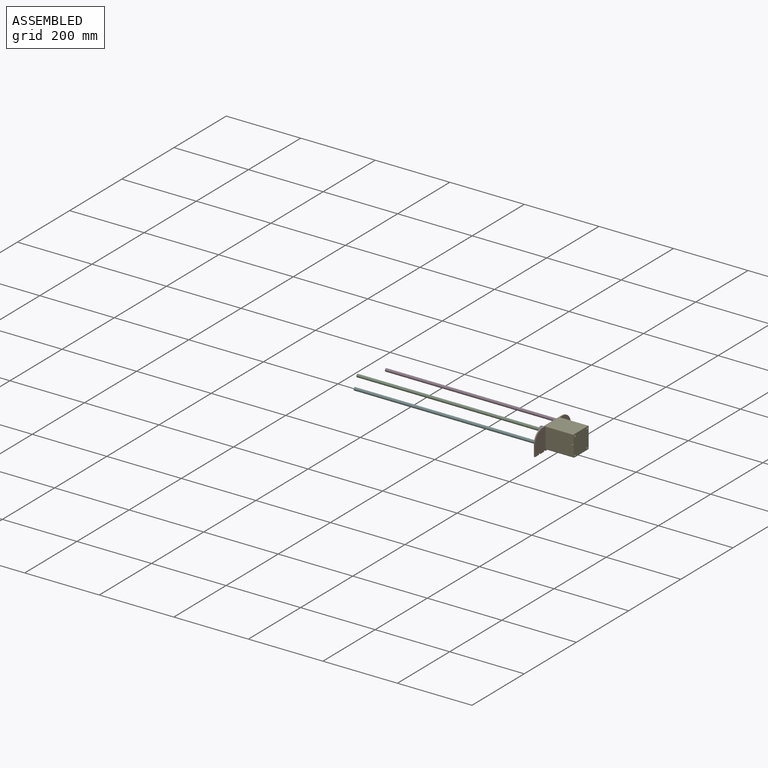
[diagram: assembled view]
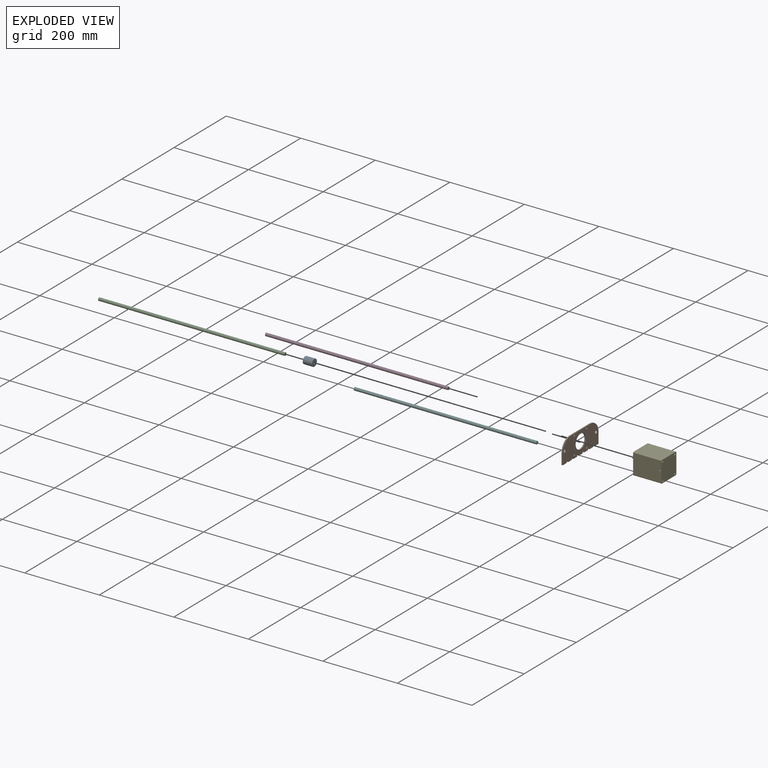
[diagram: exploded view]
GUIDED TOUR — MATED ASSEMBLY (Onshape document c9da2cffbf831127af3cdae4, AutoMate assembly c9da2cffbf831127af3cdae4_b8b92e131061159349de2e6b_43a5a8d6aeeb7ea24047fdc9_default)

This assembly has 6 components, labeled P0..P5 below (a component is one placed occurrence of a part; the same part can appear more than once), held together by 5 mates. A mate is a constraint between two components; its type names the relative motion it leaves free:
  FASTENED — locks the two components together rigidly (no relative motion).
Axis/direction vectors are unit vectors and 'through' points are millimeter coordinates, both in the assembly's world frame.

MATES
  1. FASTENED "Fastened 4": P3 <-> P1, direction (1.000, 0.000, 0.000) through (-14.99, 48.41, -1.45) mm
  2. FASTENED "Fastened 5": P5 <-> P1, direction (1.000, 0.000, 0.000) through (-14.99, -71.59, -1.45) mm
  3. FASTENED "Fastened 1": P4 <-> P1, direction (-1.000, 0.000, 0.000) through (-14.99, -11.59, -1.45) mm
  4. FASTENED "Fastened 2": P0 <-> P4, direction (-1.000, 0.000, 0.000) through (-35.99, -11.59, -1.45) mm
  5. FASTENED "Fastened 3": P2 <-> P0, direction (1.000, 0.000, 0.000) through (-39.49, -11.59, -1.45) mm

ASSEMBLY ORDER
  1. P5 — the base component [order verified]
  2. P2 [order verified]
  3. P3 [order verified]
  4. P0 [order verified]
  5. P1 [order verified]
  6. P4 [order verified]
Order-tag legend:
  [order verified] — this step's position reverses a verified removal order: the component was checked to insert without passing through the ones already placed.

Of the 6 components, 1 carries the full construction recipe — the FeatureScript program that regenerates the part's solid from scratch; the rest are supplied as boundary geometry only.
Each toured component is shown spotlighted twice — in the assembled view, then in the exploded view, where a leader line traces a displaced component back to its assembled socket (saturated green if recipe-attached, orange if geometry-only; every other component desaturated gray) — followed by its recipe or geometry summary and the mates that hold it.
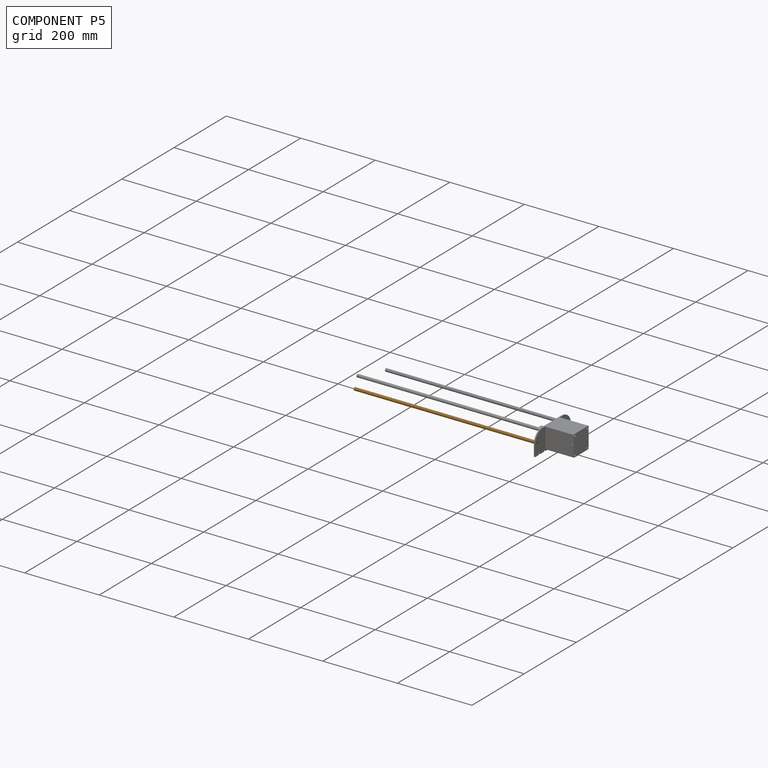
[diagram: component P5 — assembled]
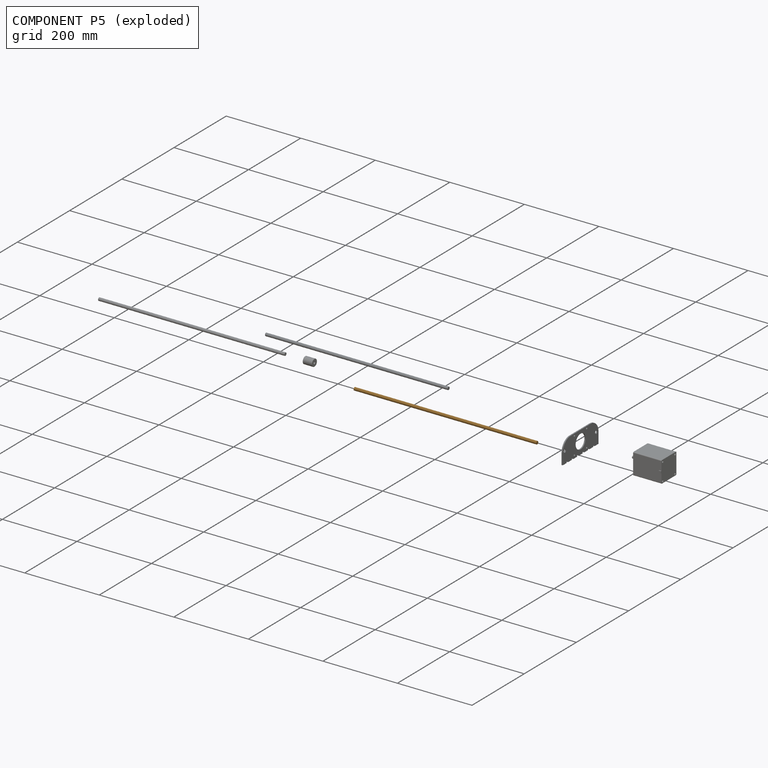
[diagram: component P5 — exploded]
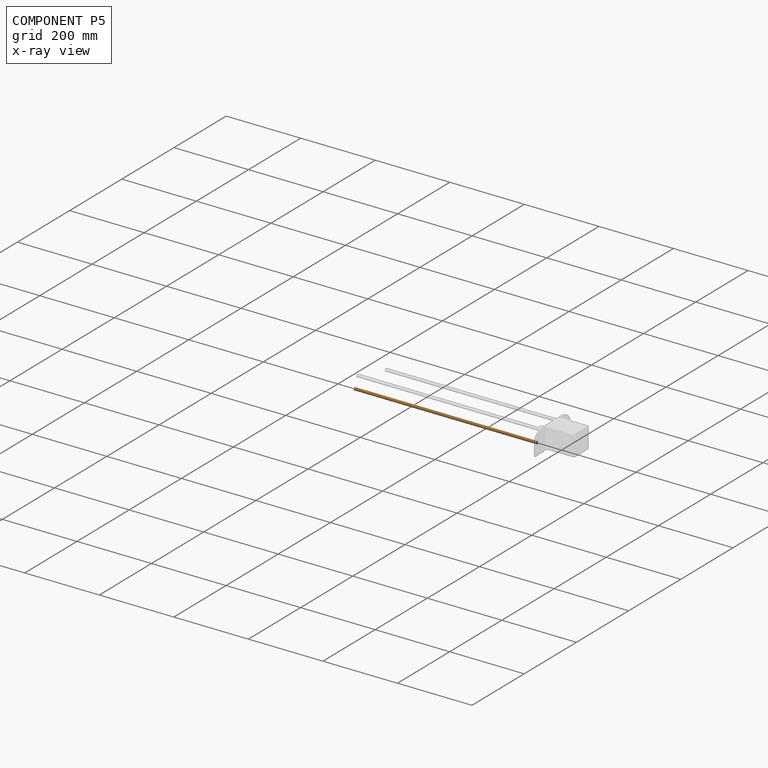
[diagram: component P5 — x-ray view]
COMPONENT P5 — geometry summary (no construction recipe available for this part):
  bounding box: 490.0 x 8.0 x 8.0 mm
  B-rep topology: 1 solid, 3 faces, 6 edges
  volume: 24630 mm^3 (79% of its bounding box)
  symmetry: 2-fold rotationally symmetric about the x axis; 2-fold rotationally symmetric about the y axis; revolution-symmetric about the z axis through its bounding-box center; mirror-symmetric across its x mid-plane, y mid-plane, z mid-plane
Held by: FASTENED mate "Fastened 5" to P1.
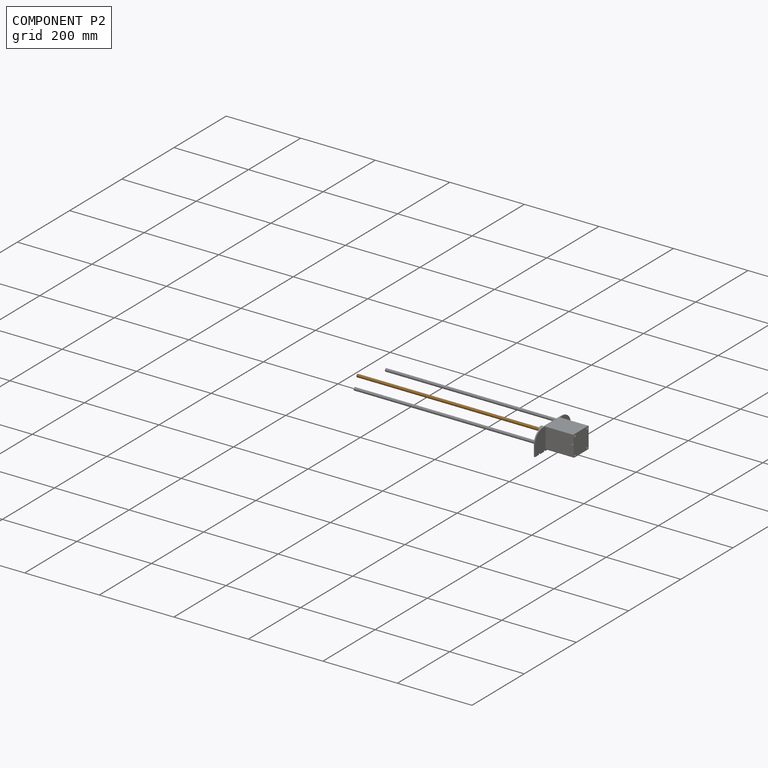
[diagram: component P2 — assembled]
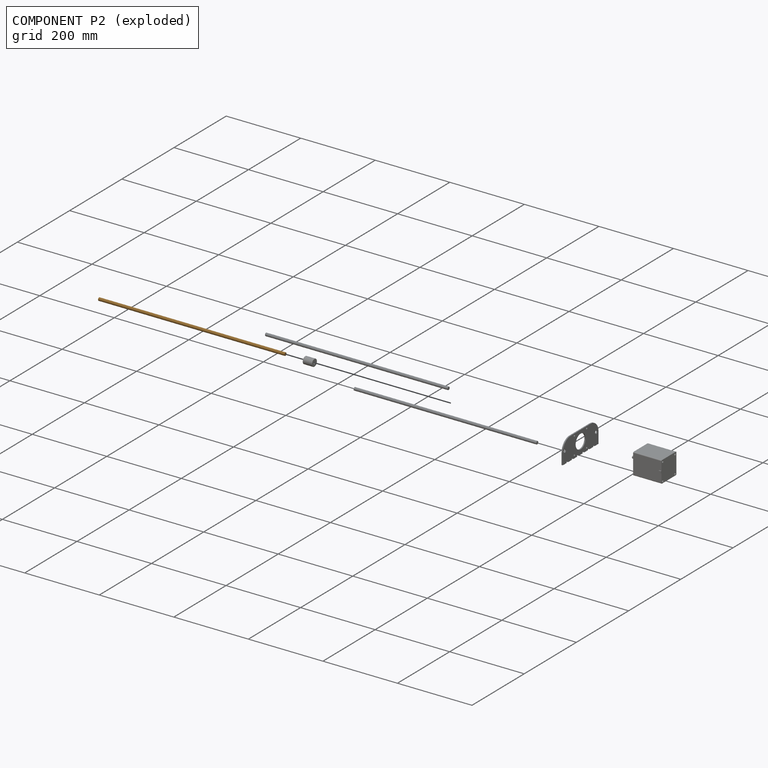
[diagram: component P2 — exploded]
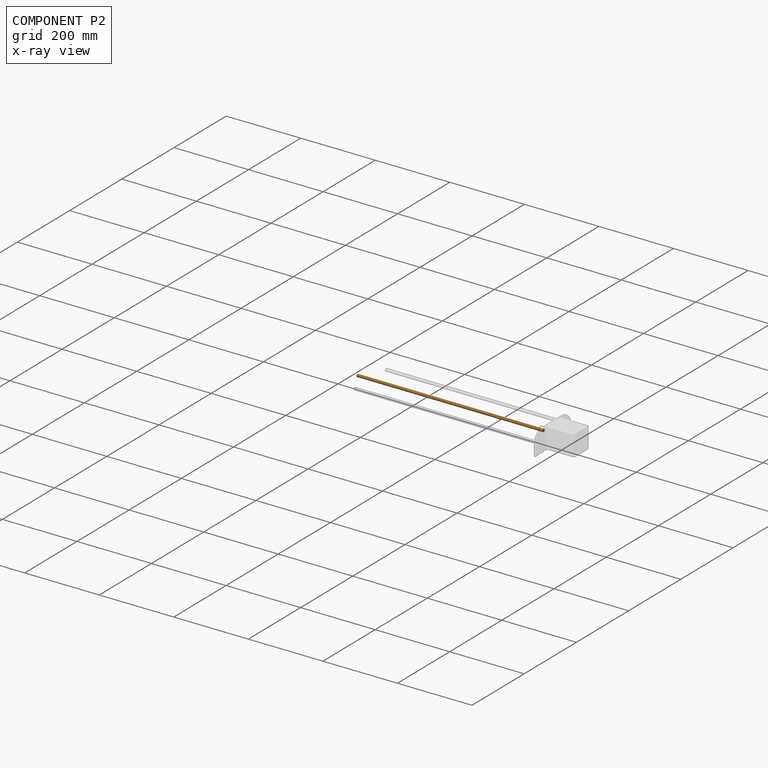
[diagram: component P2 — x-ray view]
COMPONENT P2 — geometry summary (no construction recipe available for this part):
  bounding box: 500.0 x 8.0 x 8.0 mm
  B-rep topology: 1 solid, 3 faces, 6 edges
  volume: 25133 mm^3 (79% of its bounding box)
  symmetry: 2-fold rotationally symmetric about the x axis; 2-fold rotationally symmetric about the y axis; revolution-symmetric about the z axis through its bounding-box center; mirror-symmetric across its x mid-plane, y mid-plane, z mid-plane
Held by: FASTENED mate "Fastened 3" to P0.
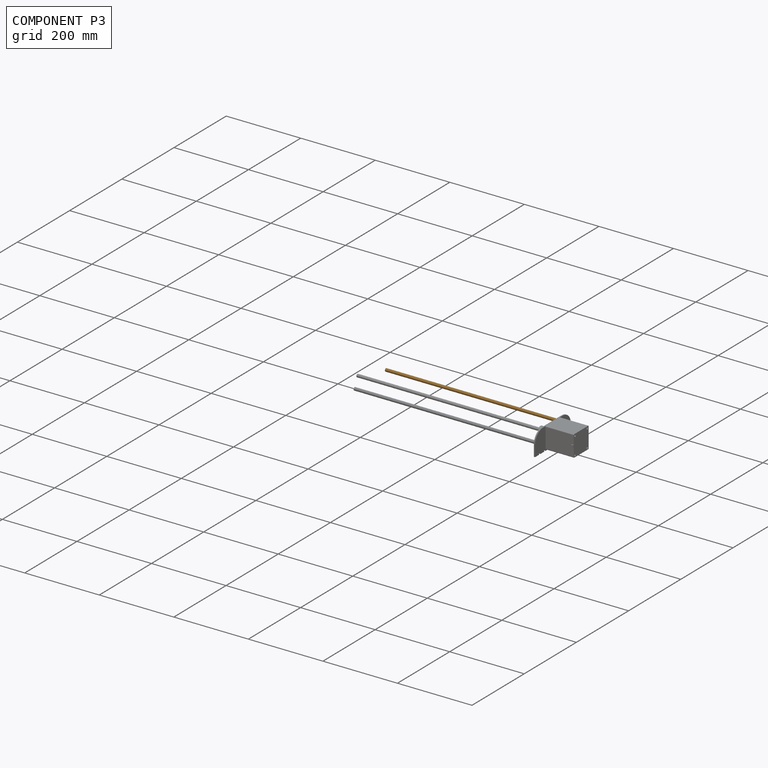
[diagram: component P3 — assembled]
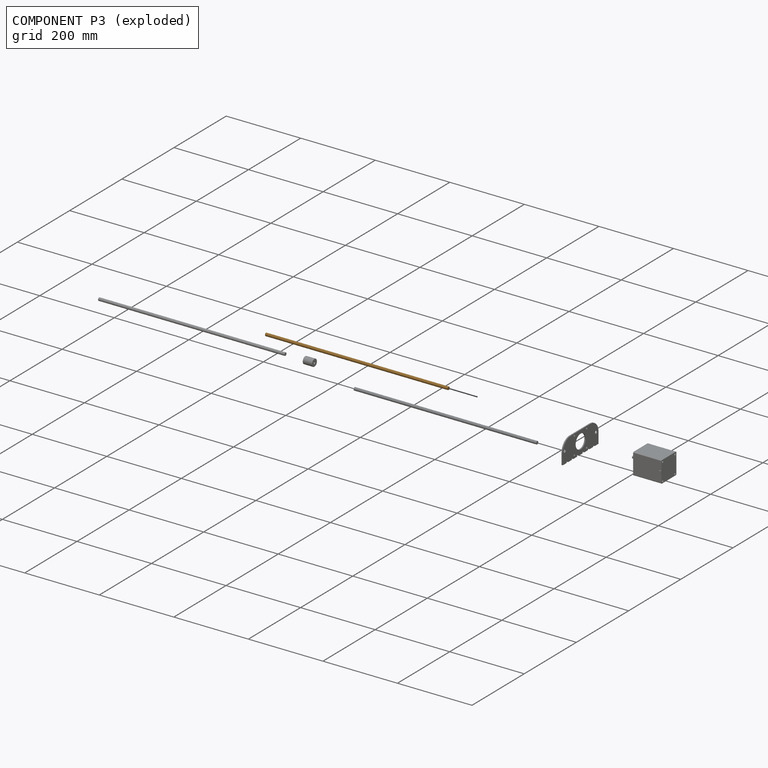
[diagram: component P3 — exploded]
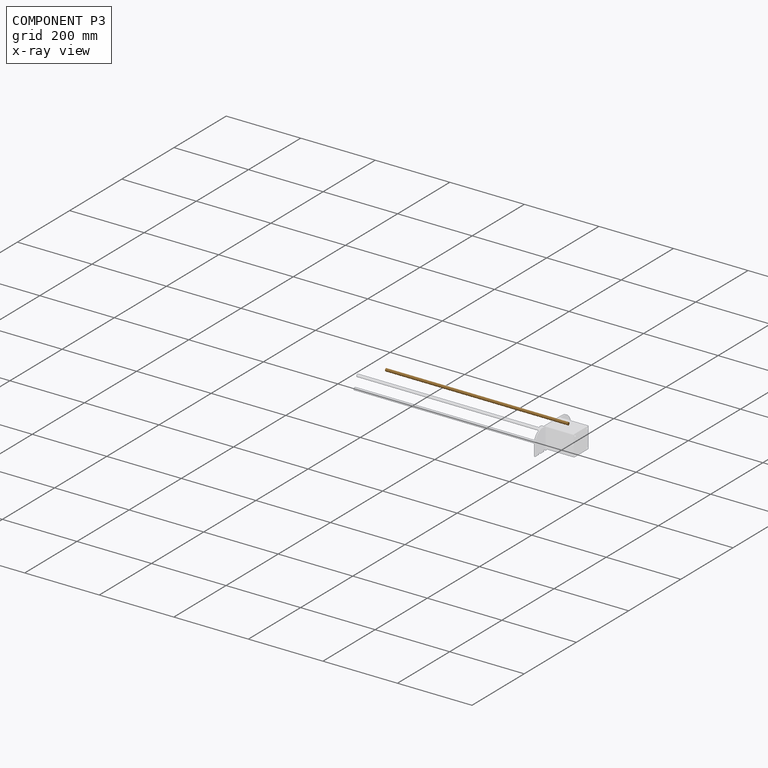
[diagram: component P3 — x-ray view]
COMPONENT P3 — geometry summary (no construction recipe available for this part):
  bounding box: 490.0 x 8.0 x 8.0 mm
  B-rep topology: 1 solid, 3 faces, 6 edges
  volume: 24630 mm^3 (79% of its bounding box)
  symmetry: 2-fold rotationally symmetric about the x axis; 2-fold rotationally symmetric about the y axis; revolution-symmetric about the z axis through its bounding-box center; mirror-symmetric across its x mid-plane, y mid-plane, z mid-plane
Held by: FASTENED mate "Fastened 4" to P1.
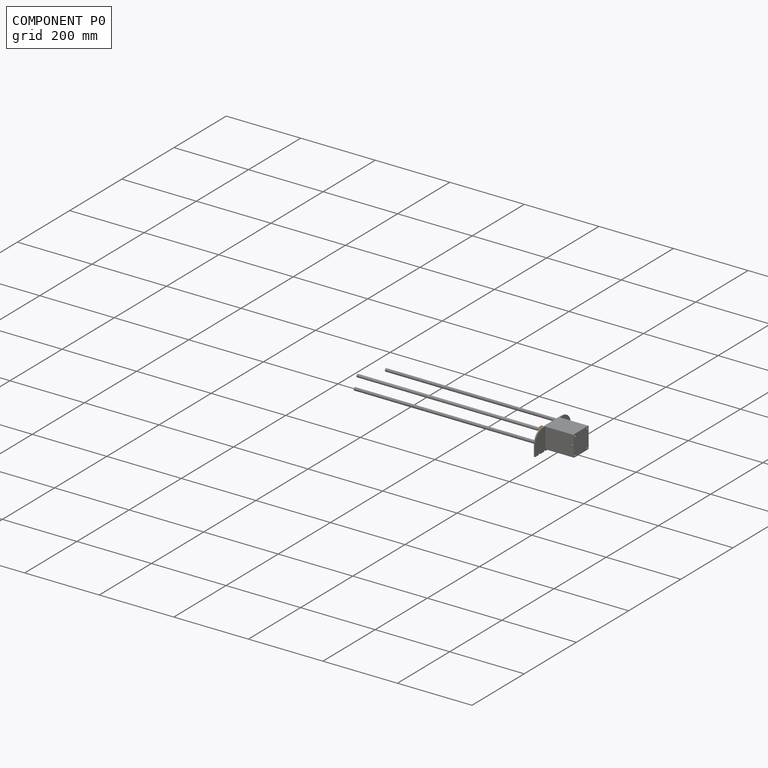
[diagram: component P0 — assembled]
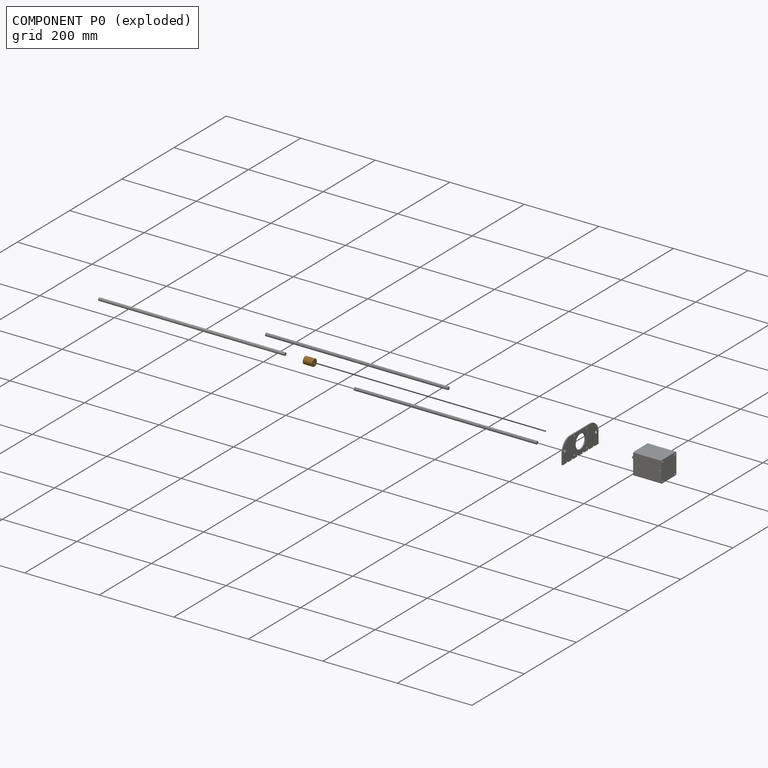
[diagram: component P0 — exploded]
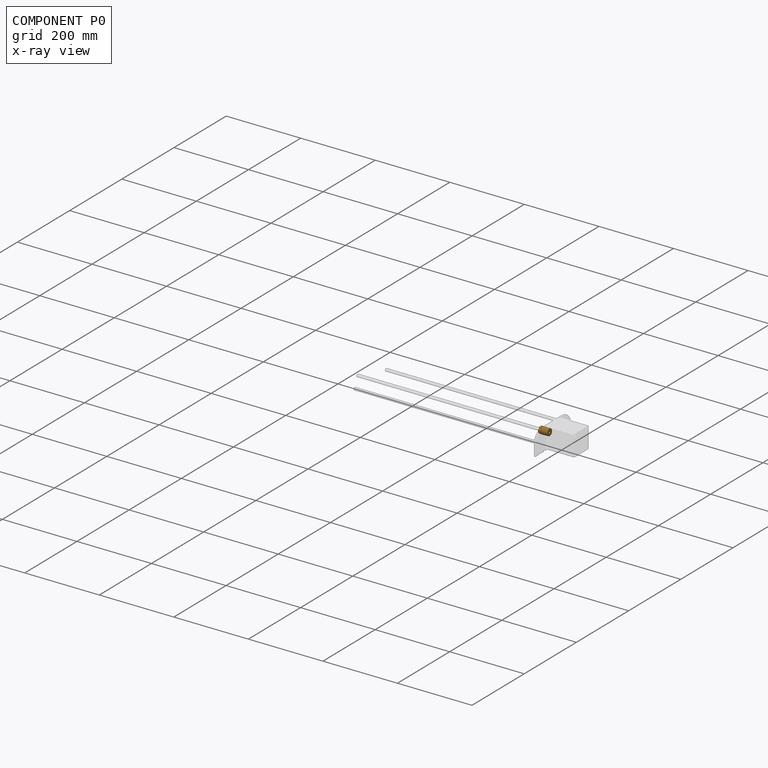
[diagram: component P0 — x-ray view]
COMPONENT P0 — geometry summary (no construction recipe available for this part):
  bounding box: 25.0 x 20.6 x 20.6 mm
  B-rep topology: 1 solid, 12 faces, 46 edges
  volume: 5960 mm^3 (56% of its bounding box)
  symmetry: revolution-symmetric about the z axis through its bounding-box center; mirror-symmetric across its x mid-plane, y mid-plane
Held by: FASTENED mate "Fastened 2" to P4; FASTENED mate "Fastened 3" to P2.
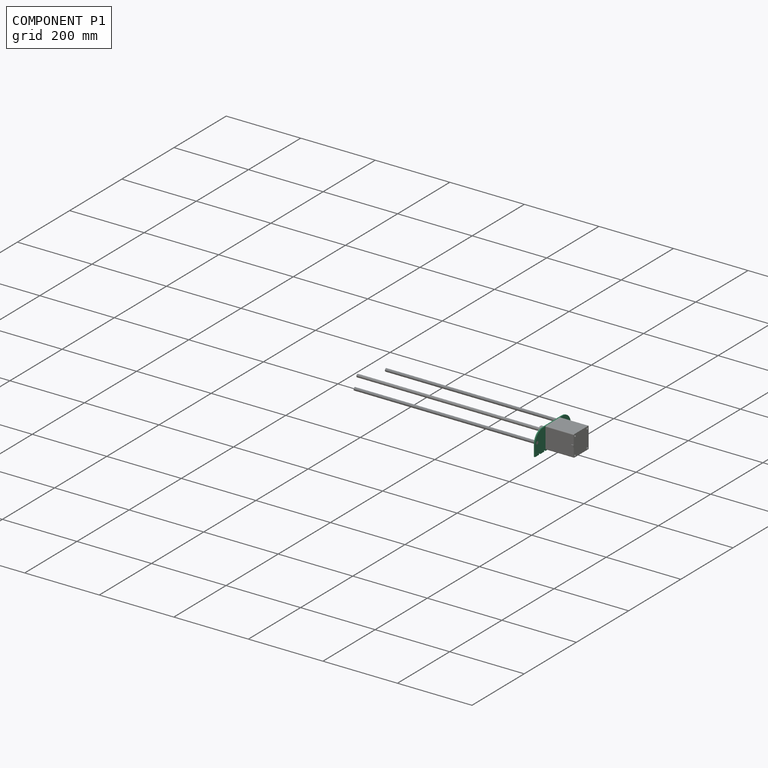
[diagram: component P1 — assembled]
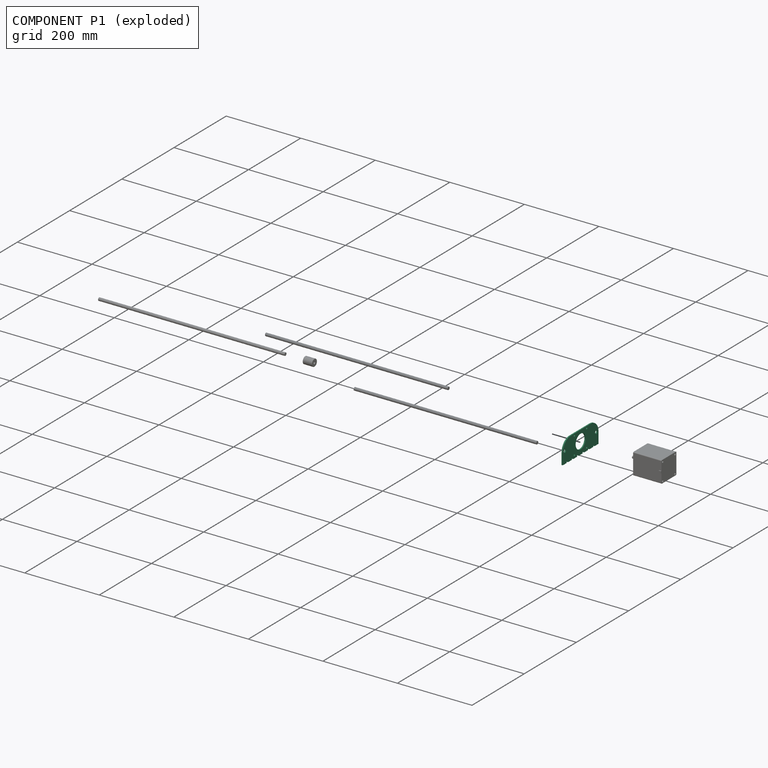
[diagram: component P1 — exploded]
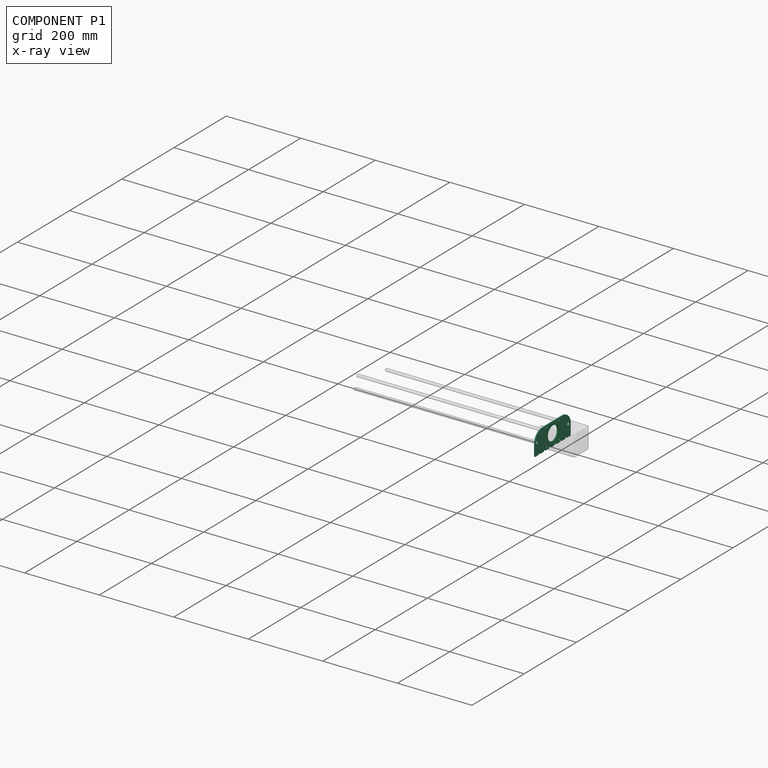
[diagram: component P1 — x-ray view]
COMPONENT P1 — recipe-attached (CADFS 00614942, mesh-verified: the recipe's output STEP matches this component's geometry to below the mesh-comparison resolution (tessellation chordal tolerance ~0.225 mm)).
Held by: FASTENED mate "Fastened 4" to P3; FASTENED mate "Fastened 5" to P5; FASTENED mate "Fastened 1" to P4.
Construction recipe (FeatureScript — the CAD program that rebuilds this solid; sketch coordinates are in the units given by the * unit suffixes, e.g. mm):

FeatureScript 1511;
import(path : "onshape/std/geometry.fs", version : "1511.0");
import(path : "onshape/std/common.fs", version : "1511.0");
const mm = millimeter;
const VERTEX = EntityType.VERTEX;
const EDGE = EntityType.EDGE;
const FACE = EntityType.FACE;
const BODY = EntityType.BODY;
function v(x, y){return vector(x, y);}
function OD(order){return orderDisambiguation(order);}
function OSD(set){return originalSetDisambiguation(set);}
function TD(topology){return topologyDisambiguation(topology);}
function TDD(query){return trueDependencyDisambiguation(query);}
function sQuery(a, b, c) {return sketchEntityQuery(a, b, c);}

annotation { "Feature Type Name" : "Feature", "Feature Type Description" : "" }
export const myFeature = defineFeature(function(context is Context, id is Id, definition is map)
    precondition{}
    {
        {
            var Q0;
            Q0=qCreatedBy(makeId("Right.planeOp"),FACE);
            var sketch = newSketch(context, id + "F0", { "sketchPlane" : qUnion([Q0])});
            skLineSegment(sketch, "E0.bottom", {"start": v(-28.5, 28.5) * mm, "end": v(28.5, 28.5) * mm});
            skLineSegment(sketch, "E0.top", {"start": v(-28.5, -28.5) * mm, "end": v(28.5, -28.5) * mm});
            skLineSegment(sketch, "E0.left", {"start": v(-28.5, 28.5) * mm, "end": v(-28.5, -28.5) * mm});
            skLineSegment(sketch, "E0.right", {"start": v(28.5, 28.5) * mm, "end": v(28.5, -28.5) * mm});
            skPoint(sketch, "E0.middle", {"position": v(0, 0) * mm});
            skLineSegment(sketch, "E1.bottom", {"start": v(28.5, -28.5) * mm, "end": v(13.5, -28.5) * mm});
            skLineSegment(sketch, "E1.top", {"start": v(28.5, -31.68) * mm, "end": v(13.5, -31.68) * mm});
            skLineSegment(sketch, "E1.left", {"start": v(28.5, -28.5) * mm, "end": v(28.5, -31.68) * mm});
            skLineSegment(sketch, "E1.right", {"start": v(13.5, -28.5) * mm, "end": v(13.5, -31.67) * mm});
            skLineSegment(sketch, "E2.bottom", {"start": v(-28.5, -28.5) * mm, "end": v(-13.5, -28.5) * mm});
            skLineSegment(sketch, "E2.top", {"start": v(-28.5, -31.67) * mm, "end": v(-13.5, -31.67) * mm});
            skLineSegment(sketch, "E2.left", {"start": v(-28.5, -28.5) * mm, "end": v(-28.5, -31.67) * mm});
            skLineSegment(sketch, "E2.right", {"start": v(-13.5, -28.5) * mm, "end": v(-13.5, -31.67) * mm});
            skLineSegment(sketch, "E3.bottom", {"start": v(0, -28.5) * mm, "end": v(7.5, -28.5) * mm});
            skLineSegment(sketch, "E3.top", {"start": v(0, -31.67) * mm, "end": v(7.5, -31.67) * mm});
            skLineSegment(sketch, "E3.left", {"start": v(0, -28.5) * mm, "end": v(0, -31.67) * mm});
            skLineSegment(sketch, "E3.right", {"start": v(7.5, -28.5) * mm, "end": v(7.5, -31.67) * mm});
            skLineSegment(sketch, "E4.bottom", {"start": v(0, -31.67) * mm, "end": v(-7.5, -31.67) * mm});
            skLineSegment(sketch, "E4.top", {"start": v(0, -28.5) * mm, "end": v(-7.5, -28.5) * mm});
            skLineSegment(sketch, "E4.left", {"start": v(0, -31.67) * mm, "end": v(0, -28.5) * mm});
            skLineSegment(sketch, "E4.right", {"start": v(-7.5, -31.67) * mm, "end": v(-7.5, -28.5) * mm});
            skCircle(sketch, "E5", {"center": v(0, 0) * mm, "radius": 19.05 * mm});
            skLineSegment(sketch, "E6.bottom", {"start": v(-23.5, 23.5) * mm, "end": v(23.5, 23.5) * mm});
            skLineSegment(sketch, "E6.top", {"start": v(-23.5, -23.5) * mm, "end": v(23.5, -23.5) * mm});
            skLineSegment(sketch, "E6.left", {"start": v(-23.5, 23.5) * mm, "end": v(-23.5, -23.5) * mm});
            skLineSegment(sketch, "E6.right", {"start": v(23.5, 23.5) * mm, "end": v(23.5, -23.5) * mm});
            skCircle(sketch, "E7", {"center": v(23.5, 23.5) * mm, "radius": 2.55 * mm});
            skCircle(sketch, "E8.MirrorC", {"center": v(-23.5, 23.5) * mm, "radius": 2.55 * mm});
            skCircle(sketch, "E9.MirrorC", {"center": v(-23.5, -23.5) * mm, "radius": 2.55 * mm});
            skCircle(sketch, "E10.MirrorC", {"center": v(23.5, -23.5) * mm, "radius": 2.55 * mm});
            skLineSegment(sketch, "E11.bottom", {"start": v(-28.5, 28.5) * mm, "end": v(-38.5, 28.5) * mm});
            skLineSegment(sketch, "E11.top", {"start": v(-28.5, -28.5) * mm, "end": v(-68.5, -28.5) * mm});
            skLineSegment(sketch, "E11.right", {"start": v(-68.5, -1.5) * mm, "end": v(-68.5, -28.5) * mm});
            skLineSegment(sketch, "E12", {"start": v(0, 0) * mm, "end": v(-60, 0) * mm});
            skCircle(sketch, "E13", {"center": v(-60, 0) * mm, "radius": 4 * mm});
            skPoint(sketch, "E14.visualSharp", {"position": v(-68.5, 28.5) * mm});
            skArc(sketch, "E14.filletArc", {"start": v(-38.5, 28.5) * mm, "mid": v(-59.71, 19.71) * mm, "end": v(-68.5, -1.5) * mm});
            skLineSegment(sketch, "E15.bottom", {"start": v(-68.5, -28.5) * mm, "end": v(-53.5, -28.5) * mm});
            skLineSegment(sketch, "E15.top", {"start": v(-68.5, -31.68) * mm, "end": v(-53.5, -31.68) * mm});
            skLineSegment(sketch, "E15.left", {"start": v(-68.5, -28.5) * mm, "end": v(-68.5, -31.68) * mm});
            skLineSegment(sketch, "E15.right", {"start": v(-53.5, -28.5) * mm, "end": v(-53.5, -31.68) * mm});
            skLineSegment(sketch, "E16", {"start": v(-53.5, -28.5) * mm, "end": v(-28.5, -28.5) * mm});
            skLineSegment(sketch, "E17.bottom", {"start": v(-41, -28.5) * mm, "end": v(-48.5, -28.5) * mm});
            skLineSegment(sketch, "E17.top", {"start": v(-41, -31.68) * mm, "end": v(-48.5, -31.68) * mm});
            skLineSegment(sketch, "E17.left", {"start": v(-41, -28.5) * mm, "end": v(-41, -31.68) * mm});
            skLineSegment(sketch, "E17.right", {"start": v(-48.5, -28.5) * mm, "end": v(-48.5, -31.68) * mm});
            skLineSegment(sketch, "E18.bottom", {"start": v(-41, -28.5) * mm, "end": v(-33.5, -28.5) * mm});
            skLineSegment(sketch, "E18.top", {"start": v(-41, -31.68) * mm, "end": v(-33.5, -31.68) * mm});
            skLineSegment(sketch, "E18.right", {"start": v(-33.5, -28.5) * mm, "end": v(-33.5, -31.68) * mm});
            skLineSegment(sketch, "E19.MirrorCS", {"start": v(28.5, 28.5) * mm, "end": v(38.5, 28.5) * mm});
            skCircle(sketch, "E20.MirrorC", {"center": v(60, 0) * mm, "radius": 4 * mm});
            skArc(sketch, "E21.MirrorCS", {"start": v(38.5, 28.5) * mm, "mid": v(59.71, 19.71) * mm, "end": v(68.5, -1.5) * mm});
            skLineSegment(sketch, "E22.MirrorCS", {"start": v(68.5, -1.5) * mm, "end": v(68.5, -28.5) * mm});
            skLineSegment(sketch, "E23.MirrorCS", {"start": v(28.5, -28.5) * mm, "end": v(68.5, -28.5) * mm});
            skLineSegment(sketch, "E24.MirrorCS", {"start": v(33.5, -28.5) * mm, "end": v(33.5, -31.68) * mm});
            skLineSegment(sketch, "E25.MirrorCS", {"start": v(41, -31.68) * mm, "end": v(33.5, -31.68) * mm});
            skLineSegment(sketch, "E26.MirrorCS", {"start": v(41, -31.68) * mm, "end": v(48.5, -31.68) * mm});
            skLineSegment(sketch, "E27.MirrorCS", {"start": v(48.5, -28.5) * mm, "end": v(48.5, -31.68) * mm});
            skLineSegment(sketch, "E28.MirrorCS", {"start": v(53.5, -28.5) * mm, "end": v(53.5, -31.68) * mm});
            skLineSegment(sketch, "E29.MirrorCS", {"start": v(68.5, -31.68) * mm, "end": v(53.5, -31.68) * mm});
            skLineSegment(sketch, "E30.MirrorCS", {"start": v(68.5, -28.5) * mm, "end": v(68.5, -31.68) * mm});
            skSolve(sketch);
        }
        {
            var Q0;
            Q0 = qSketchRegion(id + "F0", true);
            var Q1;
            Q1=makeQuery(id+"F0.imprint","IMPRINT",FACE,{"disambiguationData":[TD([[makeQuery(id+"F0.imprint","IMPRINT",EDGE,{"derivedFrom":sQuery(id+"F0.wireOp",EDGE,"E5")}),-1.0]])]});
            extrude(context, id + "F1", {"entities" : qUnion([Q0, Q1]), "depth" : 3.17 * mm, "offsetDistance" : 25 * mm});
        }
    });
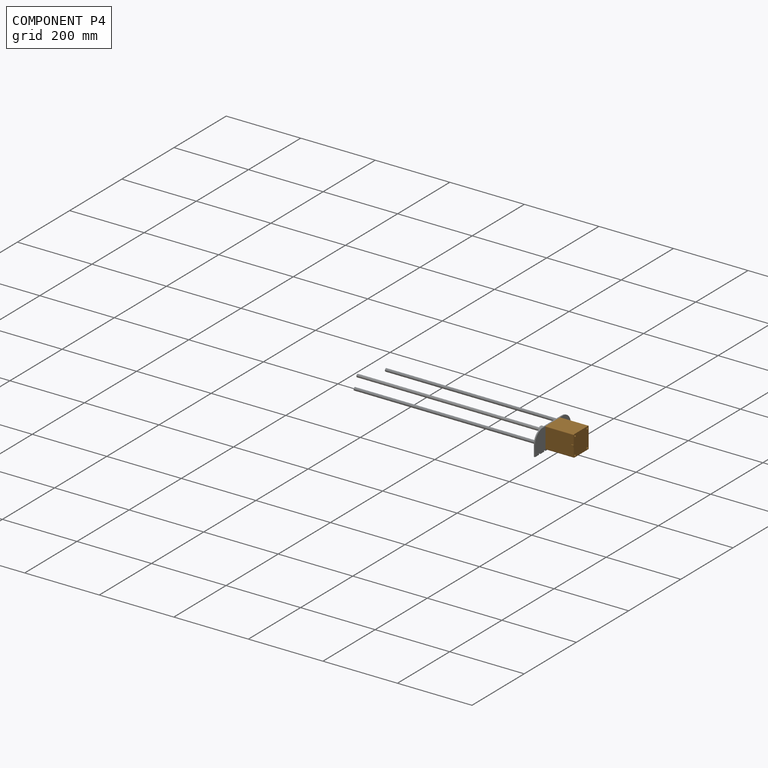
[diagram: component P4 — assembled]
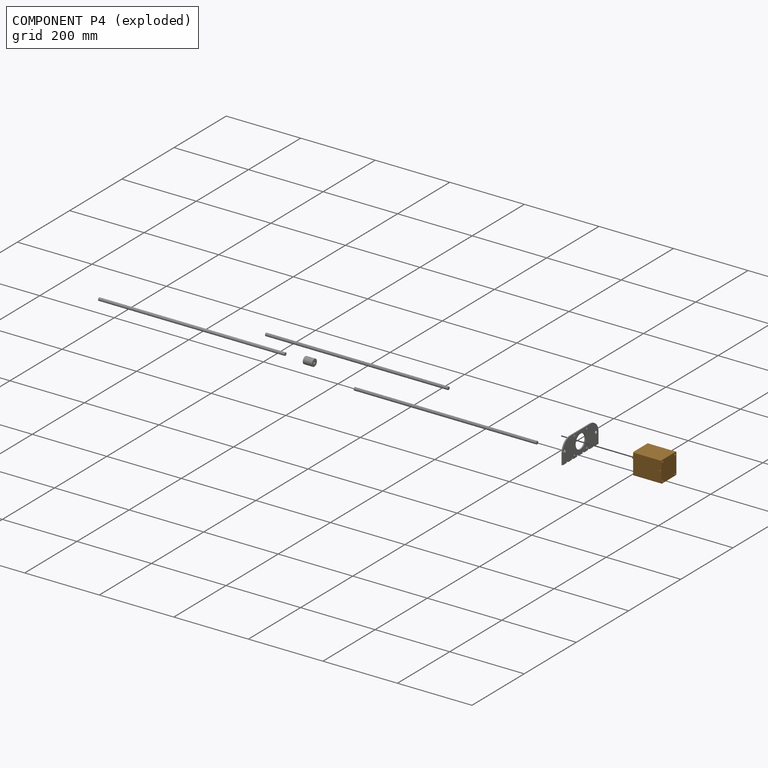
[diagram: component P4 — exploded]
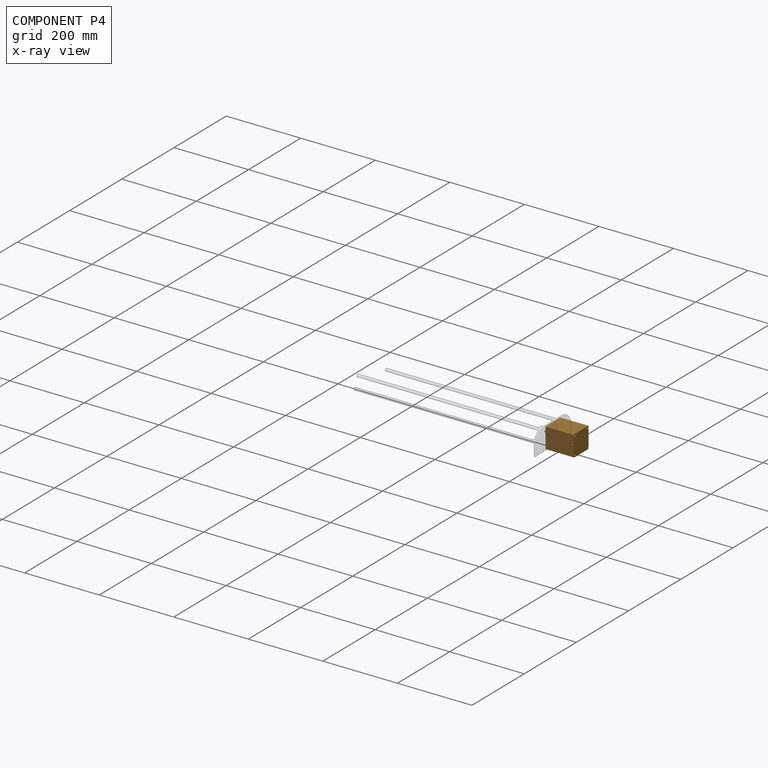
[diagram: component P4 — x-ray view]
COMPONENT P4 — geometry summary (no construction recipe available for this part):
  bounding box: 97.0 x 59.0 x 57.0 mm
  B-rep topology: 1 solid, 26 faces, 126 edges
  volume: 242890 mm^3 (74% of its bounding box)
  symmetry: mirror-symmetric across its x mid-plane
Held by: FASTENED mate "Fastened 1" to P1; FASTENED mate "Fastened 2" to P0.
PROVENANCE & LICENSES
Assembly (occurrences, transforms, mates, per-part STEP geometry): AutoMate dataset, Zenodo record 7776208, CC0.
Construction recipes: CADFS (HuggingFace VladPyatov/CADFS, CC-BY-4.0, layered over the ABC dataset), FeatureScript reconstruction programs keyed by ABC model id.
Join: ABC meta listings map ABC model id -> Onshape documentId; within a shared document, parts are matched by geometric signature (bounding-box dims + volume at 0.1% relative tolerance, exact B-rep face/solid counts).
Verification: 1 of this assembly's 6 components carries a recipe attachment, and every attachment is mesh-verified: the CADFS STEP and the AutoMate member STEP were compared as meshes in their shared local frame (symmetric sampled-point-to-mesh distance); worst across the 1 attachment: below the mesh-comparison resolution (tessellation chordal tolerance ~0.225 mm) on a 150 mm part.
Renders: orthographic iso camera (az 35 / el 25); the floor grid conveys scale (grid pitch printed in each image; no ruler). In the exploded view each component is displaced by its stored offset vector: the offsets alone carry the explosion direction (mate normal/axis signs are not orientation cues and do not encode it), and separation distances are assigned per mate-chain, not proportionally to assembly-order depth.
